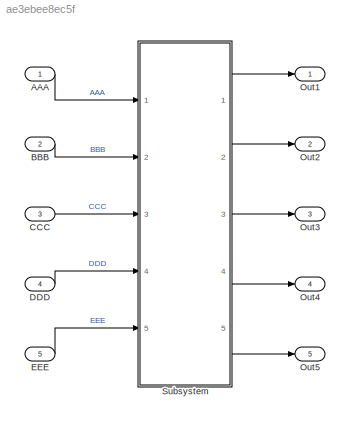
MODEL slx_ae3ebee8ec5f
KIND model
CONFIG AbsTol = auto
CONFIG EnableMultiTasking = on
CONFIG FixedStep = auto
CONFIG MaxStep = auto
CONFIG MinStep = auto
CONFIG RelTol = 1e-3
CONFIG SampleTimeConstraint = Unconstrained
CONFIG Solver = FixedStepDiscrete
CONFIG SolverName = FixedStepDiscrete
CONFIG StartTime = 0.0
CONFIG StopTime = 10
BLOCK [Inport] AAA
  IconDisplay = Port number
BLOCK [Inport] BBB
  IconDisplay = Port number
  Port = 2
BLOCK [Inport] CCC
  IconDisplay = Port number
  Port = 3
BLOCK [Inport] DDD
  IconDisplay = Port number
  Port = 4
BLOCK [Inport] EEE
  IconDisplay = Port number
  Port = 5
BLOCK [Outport] Out1
  IconDisplay = Port number
BLOCK [Outport] Out2
  IconDisplay = Port number
  Port = 2
BLOCK [Outport] Out3
  IconDisplay = Port number
  Port = 3
BLOCK [Outport] Out4
  IconDisplay = Port number
  Port = 4
BLOCK [Outport] Out5
  IconDisplay = Port number
  Port = 5
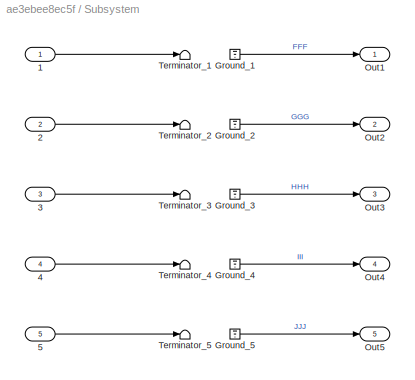
BLOCK [SubSystem] Subsystem
  Ports = [5, 5]
  RequestExecContextInheritance = off
BLOCK [Inport] Subsystem/1
  IconDisplay = Port number
BLOCK [Inport] Subsystem/2
  IconDisplay = Port number
  Port = 2
BLOCK [Inport] Subsystem/3
  IconDisplay = Port number
  Port = 3
BLOCK [Inport] Subsystem/4
  IconDisplay = Port number
  Port = 4
BLOCK [Inport] Subsystem/5
  IconDisplay = Port number
  Port = 5
BLOCK [Ground] Subsystem/Ground_1
BLOCK [Ground] Subsystem/Ground_2
BLOCK [Ground] Subsystem/Ground_3
BLOCK [Ground] Subsystem/Ground_4
BLOCK [Ground] Subsystem/Ground_5
BLOCK [Outport] Subsystem/Out1
  IconDisplay = Port number
BLOCK [Outport] Subsystem/Out2
  IconDisplay = Port number
  Port = 2
BLOCK [Outport] Subsystem/Out3
  IconDisplay = Port number
  Port = 3
BLOCK [Outport] Subsystem/Out4
  IconDisplay = Port number
  Port = 4
BLOCK [Outport] Subsystem/Out5
  IconDisplay = Port number
  Port = 5
BLOCK [Terminator] Subsystem/Terminator_1
BLOCK [Terminator] Subsystem/Terminator_2
BLOCK [Terminator] Subsystem/Terminator_3
BLOCK [Terminator] Subsystem/Terminator_4
BLOCK [Terminator] Subsystem/Terminator_5
LINE AAA:1 -> Subsystem:1
LINE BBB:1 -> Subsystem:2
LINE CCC:1 -> Subsystem:3
LINE DDD:1 -> Subsystem:4
LINE EEE:1 -> Subsystem:5
LINE Subsystem/1:1 -> Subsystem/Terminator_1:1
LINE Subsystem/2:1 -> Subsystem/Terminator_2:1
LINE Subsystem/3:1 -> Subsystem/Terminator_3:1
LINE Subsystem/4:1 -> Subsystem/Terminator_4:1
LINE Subsystem/5:1 -> Subsystem/Terminator_5:1
LINE Subsystem/Ground_1:1 -> Subsystem/Out1:1
LINE Subsystem/Ground_2:1 -> Subsystem/Out2:1
LINE Subsystem/Ground_3:1 -> Subsystem/Out3:1
LINE Subsystem/Ground_4:1 -> Subsystem/Out4:1
LINE Subsystem/Ground_5:1 -> Subsystem/Out5:1
LINE Subsystem:1 -> Out1:1
LINE Subsystem:2 -> Out2:1
LINE Subsystem:3 -> Out3:1
LINE Subsystem:4 -> Out4:1
LINE Subsystem:5 -> Out5:1
